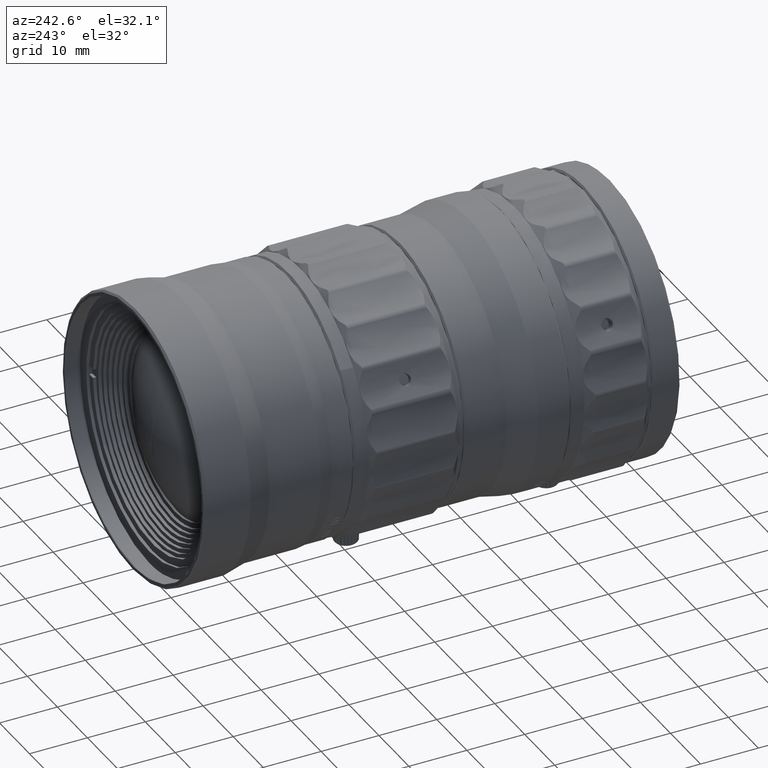
[diagram: clean part render]
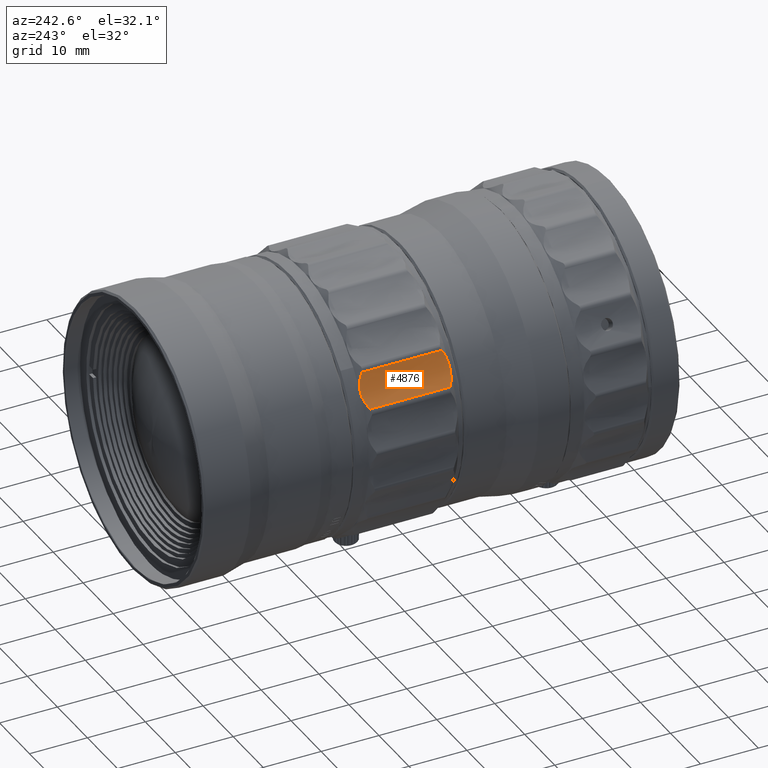
[diagram: same view with one face highlighted and labeled with its STEP entity id]
A machine part, auxiliary view. The second image highlights one B-rep face of the part: STEP entity #4876.
In plain terms, the highlighted face is a freeform B-spline surface patch.
Its self-contained STEP definition (entity closure, byte-faithful):
#678 = VERTEX_POINT ( 'NONE', #42674 ) ;
#740 = CARTESIAN_POINT ( 'NONE',  ( -21.36362217226854909, 56.65281111373129619, 8.869526124183920501 ) ) ;
#841 = EDGE_CURVE ( 'NONE', #28468, #47240, #14342, .T. ) ;
#2418 = CARTESIAN_POINT ( 'NONE',  ( -20.02850838208245676, 50.24729079917571539, 10.41751276667737258 ) ) ;
#2778 = B_SPLINE_CURVE_WITH_KNOTS ( 'NONE', 3,
 ( #67487, #56447, #50304, #75196, #13116, #6990, #76394, #33882, #38415, #75994, #57637, #8983, #21240, #46150, #51893, #76784, #45363, #70273, #64970, #32292, #2839, #20450, #26576, #7779 ),
 .UNSPECIFIED., .F., .F.,
 ( 4, 2, 1, 1, 1, 2, 2, 2, 2, 1, 1, 1, 2, 2, 4 ),
 ( -1.000000000000000000, -0.8749999999999916733, -0.8124999999999872324, -0.7812499999999860112, -0.7656249999999860112, -0.7578124999999860112, -0.7499999999999860112, -0.4999999999999897859, -0.3749999999999913403, -0.3124999999999921174, -0.2812499999999916733, -0.2656249999999906741, -0.2578124999999901190, -0.2499999999999896749, 0.000000000000000000 ),
 .UNSPECIFIED. ) ;
#2825 = CARTESIAN_POINT ( 'NONE',  ( -19.30454044379777656, 50.61822910950314025, 11.63141538425602661 ) ) ;
#2839 = CARTESIAN_POINT ( 'NONE',  ( -20.39163981437943818, 57.25293405727073548, 9.931460901318615697 ) ) ;
#3219 = CARTESIAN_POINT ( 'NONE',  ( -19.14276873182465621, 50.24601165611486664, 11.96769300386245938 ) ) ;
#3759 = CARTESIAN_POINT ( 'NONE',  ( -20.66706539091354244, 42.32624112801080685, 9.596453557910166410 ) ) ;
#4193 = CARTESIAN_POINT ( 'NONE',  ( -18.91266263469213627, 42.18402464573883037, 12.51641478307972655 ) ) ;
#4876 = ADVANCED_FACE ( 'NONE', ( #27248, #61768 ), #45925, .T. ) ;
#4885 = CARTESIAN_POINT ( 'NONE',  ( -21.36362217241964956, 42.78718888806534437, 8.869526123757379921 ) ) ;
#5013 = CARTESIAN_POINT ( 'NONE',  ( -19.42657501344584503, 41.97180259586980355, 11.39414292697422404 ) ) ;
#5422 = CARTESIAN_POINT ( 'NONE',  ( -18.48735605957730144, 42.78718888194109837, 13.90289580793299962 ) ) ;
#5766 = CARTESIAN_POINT ( 'NONE',  ( -18.48735605964667172, 41.87847909709702066, 13.90289580732318520 ) ) ;
#6096 = CARTESIAN_POINT ( 'NONE',  ( -21.36362217226854909, 56.65281111373129619, 8.869526124183920501 ) ) ;
#6168 = CARTESIAN_POINT ( 'NONE',  ( -18.93133232605198302, 57.56181570088720179, 11.96372933179986831 ) ) ;
#6279 = EDGE_CURVE ( 'NONE', #49845, #46128, #28166, .T. ) ;
#6990 = CARTESIAN_POINT ( 'NONE',  ( -18.82905739427210179, 57.18383675850108006, 12.73883732231332644 ) ) ;
#7779 = CARTESIAN_POINT ( 'NONE',  ( -21.36362217226854909, 56.65281111373129619, 8.869526124183920501 ) ) ;
#8983 = CARTESIAN_POINT ( 'NONE',  ( -19.29939548571892871, 57.46765842505232769, 11.61726707213511212 ) ) ;
#9914 = CARTESIAN_POINT ( 'NONE',  ( -20.78383652396069436, 42.39445731356136093, 9.464432805623744116 ) ) ;
#10313 = CARTESIAN_POINT ( 'NONE',  ( -19.14321090455309715, 49.20270920155101635, 11.96675380200401761 ) ) ;
#10350 = CARTESIAN_POINT ( 'NONE',  ( -20.42568735888988130, 42.20297075470988801, 9.888651710655873117 ) ) ;
#11168 = CARTESIAN_POINT ( 'NONE',  ( -19.14692262876679152, 42.04570270155588219, 11.96089315568386802 ) ) ;
#12307 = CARTESIAN_POINT ( 'NONE',  ( -21.36362217241862638, 41.87847909709702066, 8.869526122718083272 ) ) ;
#13116 = CARTESIAN_POINT ( 'NONE',  ( -18.76063118893866033, 57.11447960480479225, 12.93188597882483037 ) ) ;
#13762 = EDGE_LOOP ( 'NONE', ( #22846, #72222 ) ) ;
#14342 = B_SPLINE_CURVE_WITH_KNOTS ( 'NONE', 3,
 ( #22156, #47071, #65883, #9914, #3759, #28695, #78544, #67114, #10350, #42601, #61823, #23001, #29946, #16469, #5013, #36059, #11168, #78962, #36466, #72823, #42997, #4193, #54873, #55273, #49128, #5422 ),
 .UNSPECIFIED., .F., .F.,
 ( 4, 2, 1, 1, 1, 2, 2, 2, 2, 2, 1, 1, 1, 2, 2, 4 ),
 ( -1.000000000000000000, -0.8749999999999971134, -0.8124999999999946709, -0.7812499999999928946, -0.7656249999999915623, -0.7578124999999913403, -0.7499999999999911182, -0.6249999999999874545, -0.4999999999999837907, -0.3749999999999800160, -0.3124999999999781286, -0.2812499999999771294, -0.2656249999999770184, -0.2578124999999762412, -0.2499999999999753530, 0.000000000000000000 ),
 .UNSPECIFIED. ) ;
#15494 = CARTESIAN_POINT ( 'NONE',  ( -19.68241995992966409, 50.72518564001140362, 10.94624310349151131 ) ) ;
#16469 = CARTESIAN_POINT ( 'NONE',  ( -19.67614456061654948, 41.97153224600301513, 10.95712153711638059 ) ) ;
#16839 = CARTESIAN_POINT ( 'NONE',  ( -20.09241085330030074, 49.72500000006129994, 10.32984012452246070 ) ) ;
#20450 = CARTESIAN_POINT ( 'NONE',  ( -20.69165640725573141, 57.11370879803849476, 9.553250820957758904 ) ) ;
#21240 = CARTESIAN_POINT ( 'NONE',  ( -19.67428363534305902, 57.46866391081360348, 10.96017276549567221 ) ) ;
#22156 = CARTESIAN_POINT ( 'NONE',  ( -21.36362217241964956, 42.78718888806534437, 8.869526123757379921 ) ) ;
#22846 = ORIENTED_EDGE ( 'NONE', *, *, #6279, .T. ) ;
#23001 = CARTESIAN_POINT ( 'NONE',  ( -20.09689730714389100, 42.06430047972691710, 10.31797129151007297 ) ) ;
#26576 = CARTESIAN_POINT ( 'NONE',  ( -21.01294382550986484, 56.91507413166435470, 9.201204407326219581 ) ) ;
#27248 = FACE_OUTER_BOUND ( 'NONE', #56723, .T. ) ;
#27759 = CARTESIAN_POINT ( 'NONE',  ( -19.10011870881169571, 49.98751564399481850, 12.06631825448049433 ) ) ;
#28166 = B_SPLINE_CURVE_WITH_KNOTS ( 'NONE', 3,
 ( #79337, #54441, #10313, #28680, #78508, #48291, #72369, #35209, #72788, #16839 ),
 .UNSPECIFIED., .F., .F.,
 ( 4, 2, 2, 2, 4 ),
 ( -0.003127717221871429993, -0.002345787916403572603, -0.001563858610935714996, -0.0007819293054678573898, 0.000000000000000000 ),
 .UNSPECIFIED. ) ;
#28468 = VERTEX_POINT ( 'NONE', #4885 ) ;
#28519 = EDGE_CURVE ( 'NONE', #61527, #28468, #39248, .T. ) ;
#28680 = CARTESIAN_POINT ( 'NONE',  ( -19.30450393627699768, 48.83211730680184104, 11.63151137341438712 ) ) ;
#28695 = CARTESIAN_POINT ( 'NONE',  ( -20.53570022224095837, 42.25693305657051013, 9.753082960495458309 ) ) ;
#29946 = CARTESIAN_POINT ( 'NONE',  ( -19.81130045969503328, 41.99003074091369569, 10.73986612752486991 ) ) ;
#30698 = CARTESIAN_POINT ( 'NONE',  ( -18.93133232605198302, 41.87847909709702066, 11.96372933179986831 ) ) ;
#31095 = CARTESIAN_POINT ( 'NONE',  ( -19.91833654058732606, 57.56181570088720179, 10.23650490358731169 ) ) ;
#32292 = CARTESIAN_POINT ( 'NONE',  ( -20.38095394286253637, 57.25783543011979049, 9.944993142361647998 ) ) ;
#33473 = CARTESIAN_POINT ( 'NONE',  ( -19.42236384259222959, 50.72481386570157724, 11.40140756203734895 ) ) ;
#33660 = B_SPLINE_CURVE_WITH_KNOTS ( 'NONE', 3,
 ( #34270, #77173, #2418, #58025, #15494, #33473, #2825, #3219, #27759, #65356 ),
 .UNSPECIFIED., .F., .F.,
 ( 4, 2, 2, 2, 4 ),
 ( -0.006255440084465789530, -0.005473509368817199537, -0.004691578653168609545, -0.003909647937520020419, -0.003127717221871429993 ),
 .UNSPECIFIED. ) ;
#33882 = CARTESIAN_POINT ( 'NONE',  ( -18.87983775949285814, 57.22914009716564721, 12.60215890634832014 ) ) ;
#34270 = CARTESIAN_POINT ( 'NONE',  ( -20.09241085330030074, 49.72500000006129994, 10.32984012452246070 ) ) ;
#35209 = CARTESIAN_POINT ( 'NONE',  ( -20.02909305789290073, 49.20398834461185089, 10.41665501586779463 ) ) ;
#36059 = CARTESIAN_POINT ( 'NONE',  ( -19.30968856601580796, 41.99032831289134293, 11.61798435461718348 ) ) ;
#36466 = CARTESIAN_POINT ( 'NONE',  ( -18.98303882411323329, 42.13270273130110866, 12.33917400479547943 ) ) ;
#37203 = CARTESIAN_POINT ( 'NONE',  ( -18.48735605964667172, 57.56181570088720889, 13.90289580732318520 ) ) ;
#38391 = CARTESIAN_POINT ( 'NONE',  ( -19.10011870889180230, 49.72499999918099434, 12.06631825443123951 ) ) ;
#38415 = CARTESIAN_POINT ( 'NONE',  ( -18.89016323523392415, 57.23782000534050951, 12.57493352473951020 ) ) ;
#39248 = B_SPLINE_CURVE_WITH_KNOTS ( 'NONE', 1,
 ( #6096, #55147 ),
 .UNSPECIFIED., .F., .F.,
 ( 2, 2 ),
 ( -1.000000000000000000, 0.000000000000000000 ),
 .UNSPECIFIED. ) ;
#42601 = CARTESIAN_POINT ( 'NONE',  ( -20.41755353201835987, 42.19912700083211377, 9.898831473091698641 ) ) ;
#42674 = CARTESIAN_POINT ( 'NONE',  ( -18.48735605898979983, 56.65281112114899997, 13.90289580830240013 ) ) ;
#42997 = CARTESIAN_POINT ( 'NONE',  ( -18.92421505261382819, 42.17509983004820384, 12.48678958531615635 ) ) ;
#43344 = CARTESIAN_POINT ( 'NONE',  ( -19.91833654058732606, 41.87847909709702066, 10.23650490358731169 ) ) ;
#45363 = CARTESIAN_POINT ( 'NONE',  ( -20.26384197739233528, 57.30902232274564057, 10.09599568760790866 ) ) ;
#45925 =( BOUNDED_SURFACE ( )  B_SPLINE_SURFACE ( 1, 3, ( 
 ( #5766, #30698, #43344, #12307 ),
 ( #37203, #6168, #31095, #56026 ) ),
 .UNSPECIFIED., .F., .F., .T. ) 
 B_SPLINE_SURFACE_WITH_KNOTS ( ( 2, 2 ),
 ( 4, 4 ),
 ( 0.0004865198980000002421, 0.9978547881020000121 ),
 ( 0.000000000000000000, 1.000000000000000000 ),
 .UNSPECIFIED. ) 
 GEOMETRIC_REPRESENTATION_ITEM ( )  RATIONAL_B_SPLINE_SURFACE ( (
 ( 1.000000000000000000, 0.9713792066990706298, 0.9713792066990706298, 1.000000000000000000),
 ( 1.000000000000000000, 0.9713792066990706298, 0.9713792066990706298, 1.000000000000000000) ) ) 
 REPRESENTATION_ITEM ( '' )  SURFACE ( )  );
#46128 = VERTEX_POINT ( 'NONE', #53849 ) ;
#46150 = CARTESIAN_POINT ( 'NONE',  ( -19.80788603681834914, 57.45053035520118101, 10.74525572131253703 ) ) ;
#47071 = CARTESIAN_POINT ( 'NONE',  ( -21.18965260698858799, 42.65708166742273022, 9.034069863569216707 ) ) ;
#47240 = VERTEX_POINT ( 'NONE', #62978 ) ;
#48291 = CARTESIAN_POINT ( 'NONE',  ( -19.68315598804093369, 48.72518613502513318, 10.94503001301439582 ) ) ;
#49128 = CARTESIAN_POINT ( 'NONE',  ( -18.59458430209581437, 42.52613436689143356, 13.43455227475059210 ) ) ;
#49845 = VERTEX_POINT ( 'NONE', #38391 ) ;
#50081 = ORIENTED_EDGE ( 'NONE', *, *, #28519, .T. ) ;
#50304 = CARTESIAN_POINT ( 'NONE',  ( -18.60246402591909387, 56.89781103102307469, 13.43883857771885992 ) ) ;
#51893 = CARTESIAN_POINT ( 'NONE',  ( -20.02087733826887828, 57.39562694548320110, 10.43010571176039569 ) ) ;
#53849 = CARTESIAN_POINT ( 'NONE',  ( -20.09241085330030074, 49.72500000006129994, 10.32984012452246070 ) ) ;
#54441 = CARTESIAN_POINT ( 'NONE',  ( -19.10011870881169571, 49.46064993188060299, 12.06631825448048900 ) ) ;
#54873 = CARTESIAN_POINT ( 'NONE',  ( -18.90643929792808109, 42.18894743112112877, 12.53249598526456943 ) ) ;
#55147 = CARTESIAN_POINT ( 'NONE',  ( -21.36362217241964956, 42.78718888806534437, 8.869526123757379921 ) ) ;
#55273 = CARTESIAN_POINT ( 'NONE',  ( -18.73398044965571785, 42.32812639874372707, 12.98106245838057937 ) ) ;
#56026 = CARTESIAN_POINT ( 'NONE',  ( -21.36362217241862638, 57.56181570088720889, 8.869526122718083272 ) ) ;
#56214 = EDGE_CURVE ( 'NONE', #678, #61527, #2778, .T. ) ;
#56447 = CARTESIAN_POINT ( 'NONE',  ( -18.54090180599675364, 56.78317192131235913, 13.66902268372211893 ) ) ;
#56723 = EDGE_LOOP ( 'NONE', ( #71819, #66005, #50081, #76631 ) ) ;
#57637 = CARTESIAN_POINT ( 'NONE',  ( -19.08284756247004310, 57.39365653063385508, 12.07340371119277833 ) ) ;
#58025 = CARTESIAN_POINT ( 'NONE',  ( -19.82156628700959544, 50.61788269392484096, 10.72666951865960883 ) ) ;
#58982 = EDGE_CURVE ( 'NONE', #47240, #678, #71711, .T. ) ;
#59371 = EDGE_CURVE ( 'NONE', #46128, #49845, #33660, .T. ) ;
#61527 = VERTEX_POINT ( 'NONE', #740 ) ;
#61768 = FACE_BOUND ( 'NONE', #13762, .T. ) ;
#61823 = CARTESIAN_POINT ( 'NONE',  ( -20.24816439324344586, 42.12007082207882291, 10.11188560408048787 ) ) ;
#62978 = CARTESIAN_POINT ( 'NONE',  ( -18.48735605957730144, 42.78718888194109837, 13.90289580793299962 ) ) ;
#64250 = CARTESIAN_POINT ( 'NONE',  ( -18.48735605898979983, 56.65281112114899997, 13.90289580830240013 ) ) ;
#64970 = CARTESIAN_POINT ( 'NONE',  ( -20.36127150820565745, 57.26673931993472877, 9.970050512132615950 ) ) ;
#65049 = CARTESIAN_POINT ( 'NONE',  ( -18.48735605957730144, 42.78718888194109837, 13.90289580793299962 ) ) ;
#65356 = CARTESIAN_POINT ( 'NONE',  ( -19.10011870889180230, 49.72499999918099434, 12.06631825443123951 ) ) ;
#65883 = CARTESIAN_POINT ( 'NONE',  ( -21.02290375190434091, 42.54263537422678354, 9.203626970442643440 ) ) ;
#66005 = ORIENTED_EDGE ( 'NONE', *, *, #56214, .T. ) ;
#67114 = CARTESIAN_POINT ( 'NONE',  ( -20.44387255726990205, 42.21164839844317385, 9.865982223092613523 ) ) ;
#67487 = CARTESIAN_POINT ( 'NONE',  ( -18.48735605898979983, 56.65281112114899997, 13.90289580830240013 ) ) ;
#70273 = CARTESIAN_POINT ( 'NONE',  ( -20.33184278630259101, 57.27987872437355321, 10.00770061647701148 ) ) ;
#71711 = B_SPLINE_CURVE_WITH_KNOTS ( 'NONE', 1,
 ( #65049, #64250 ),
 .UNSPECIFIED., .F., .F.,
 ( 2, 2 ),
 ( -1.000000000000000000, 0.000000000000000000 ),
 .UNSPECIFIED. ) ;
#71819 = ORIENTED_EDGE ( 'NONE', *, *, #58982, .T. ) ;
#72222 = ORIENTED_EDGE ( 'NONE', *, *, #59371, .T. ) ;
#72369 = CARTESIAN_POINT ( 'NONE',  ( -19.82150214217005768, 48.83177089122358439, 10.72674967262262768 ) ) ;
#72788 = CARTESIAN_POINT ( 'NONE',  ( -20.09241085172465091, 49.46248435673189903, 10.32984012610813274 ) ) ;
#72823 = CARTESIAN_POINT ( 'NONE',  ( -18.94164663225532763, 42.16192812067736639, 12.44240087058487099 ) ) ;
#75196 = CARTESIAN_POINT ( 'NONE',  ( -18.70603747011392670, 57.04618716812207424, 13.09982705790211277 ) ) ;
#75994 = CARTESIAN_POINT ( 'NONE',  ( -18.89487410399276968, 57.24171127328155961, 12.56258550092860737 ) ) ;
#76394 = CARTESIAN_POINT ( 'NONE',  ( -18.86443123979137582, 57.21593599640755912, 12.64305054882978574 ) ) ;
#76631 = ORIENTED_EDGE ( 'NONE', *, *, #841, .T. ) ;
#76784 = CARTESIAN_POINT ( 'NONE',  ( -20.13051853217617193, 57.36124947154937814, 10.27433692073340588 ) ) ;
#77173 = CARTESIAN_POINT ( 'NONE',  ( -20.09241085172464736, 49.98935006884610033, 10.32984012610813451 ) ) ;
#78508 = CARTESIAN_POINT ( 'NONE',  ( -19.42303531142754025, 48.72481436071532102, 11.40015757984165390 ) ) ;
#78544 = CARTESIAN_POINT ( 'NONE',  ( -20.47123764454304151, 42.22484839044254556, 9.832021027679408220 ) ) ;
#78962 = CARTESIAN_POINT ( 'NONE',  ( -19.06867975055387987, 42.08028634917121025, 12.13413312475590722 ) ) ;
#79337 = CARTESIAN_POINT ( 'NONE',  ( -19.10011870889180230, 49.72499999918099434, 12.06631825443123951 ) ) ;